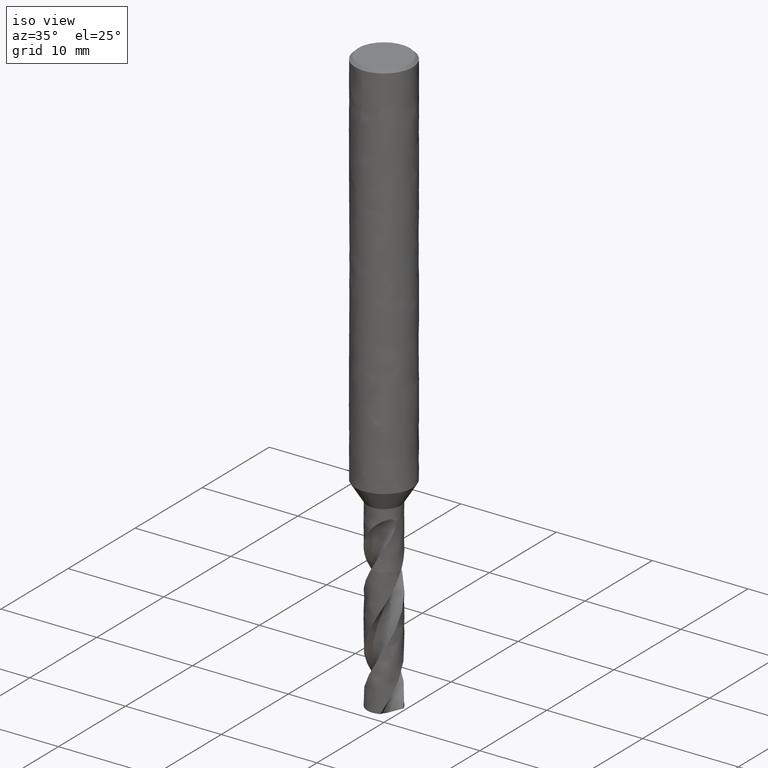
[diagram: clean part render]
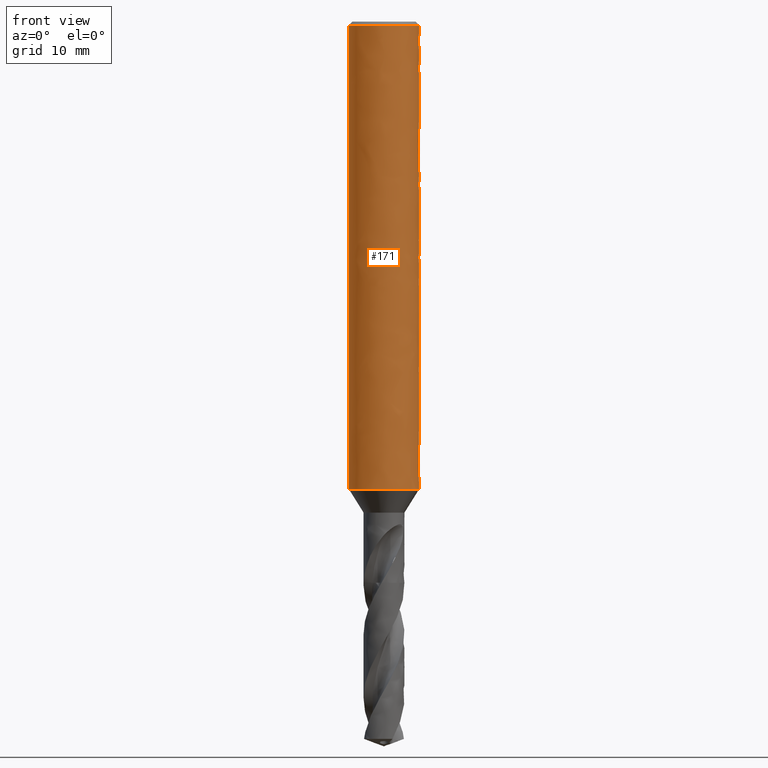
[diagram: tour spotlight — one face highlighted and labeled with its STEP entity id]
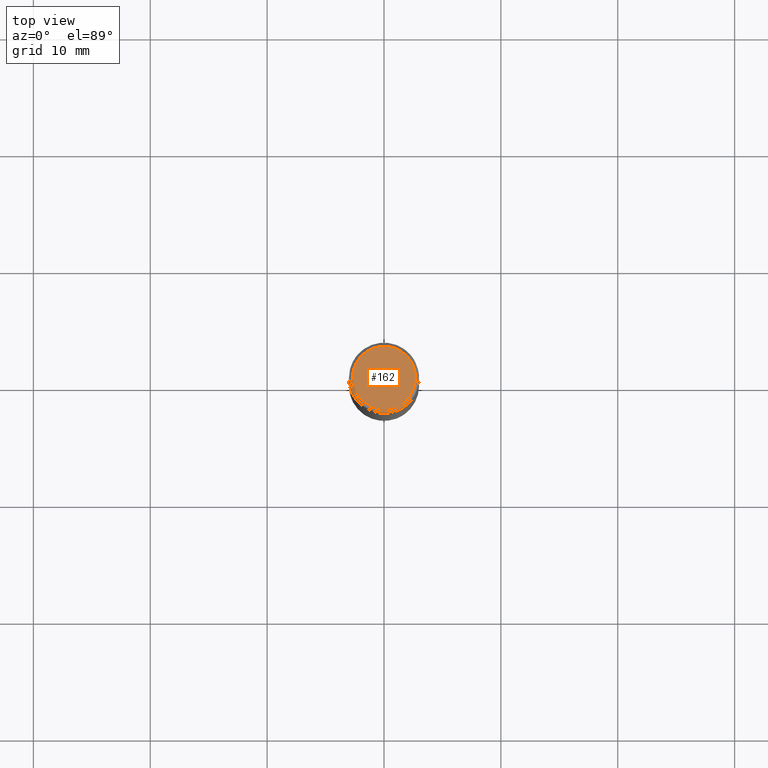
[diagram: tour spotlight — one face highlighted and labeled with its STEP entity id]
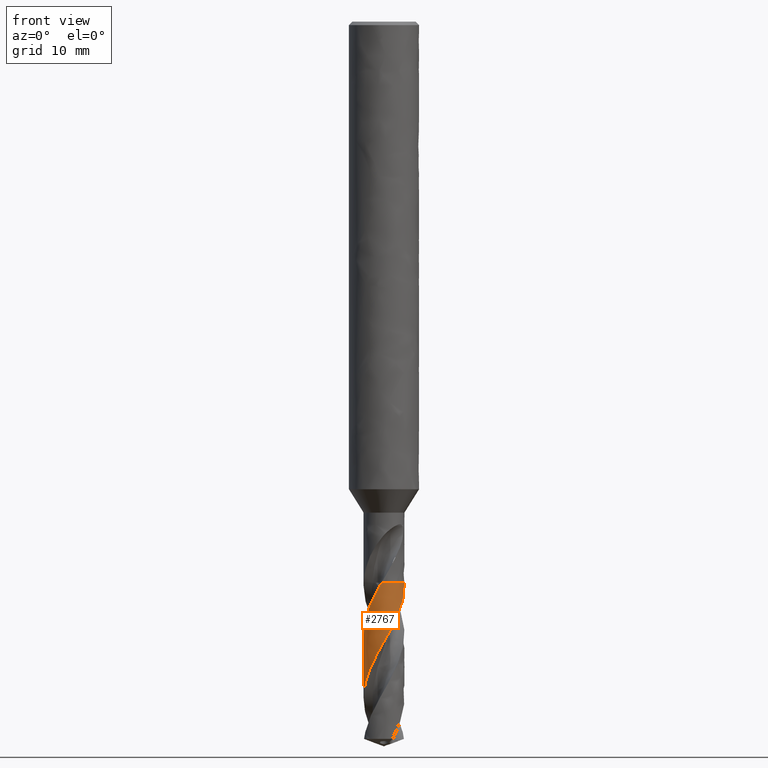
[diagram: tour spotlight — one face highlighted and labeled with its STEP entity id]
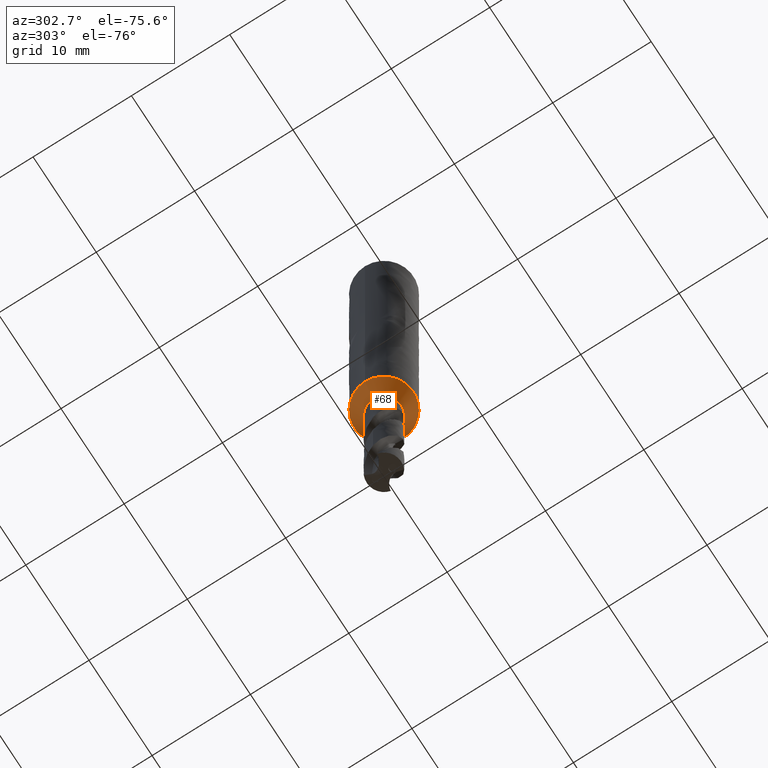
[diagram: tour spotlight — one face highlighted and labeled with its STEP entity id]
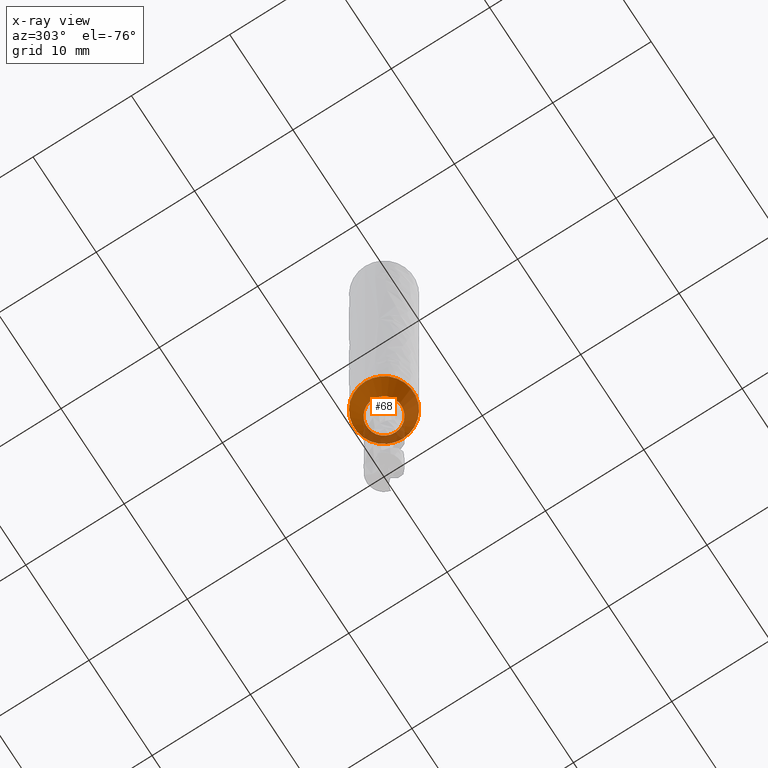
[diagram: x-ray of the same camera — body ghosted, this tour face saturated]
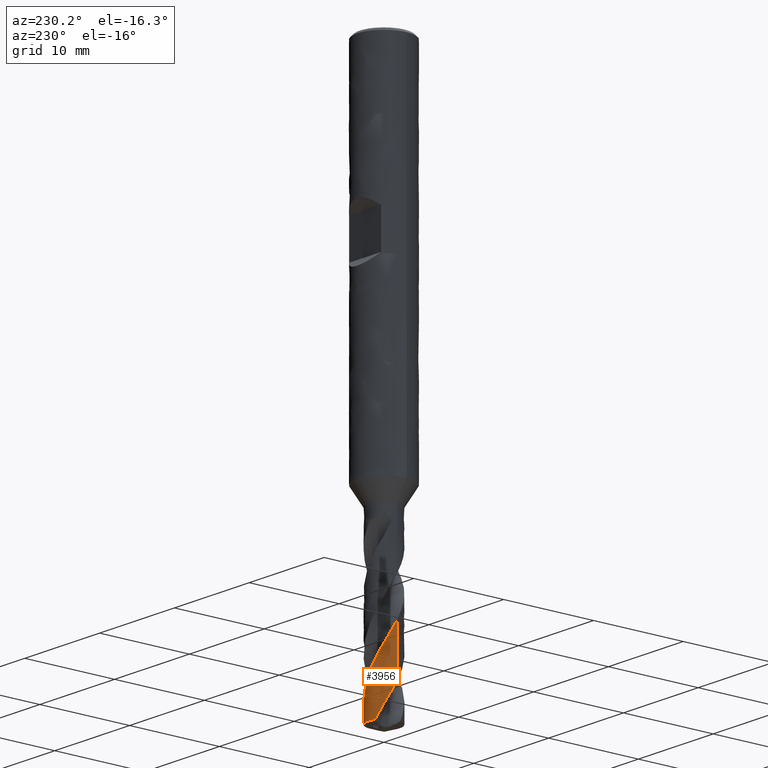
[diagram: tour spotlight — one face highlighted and labeled with its STEP entity id]
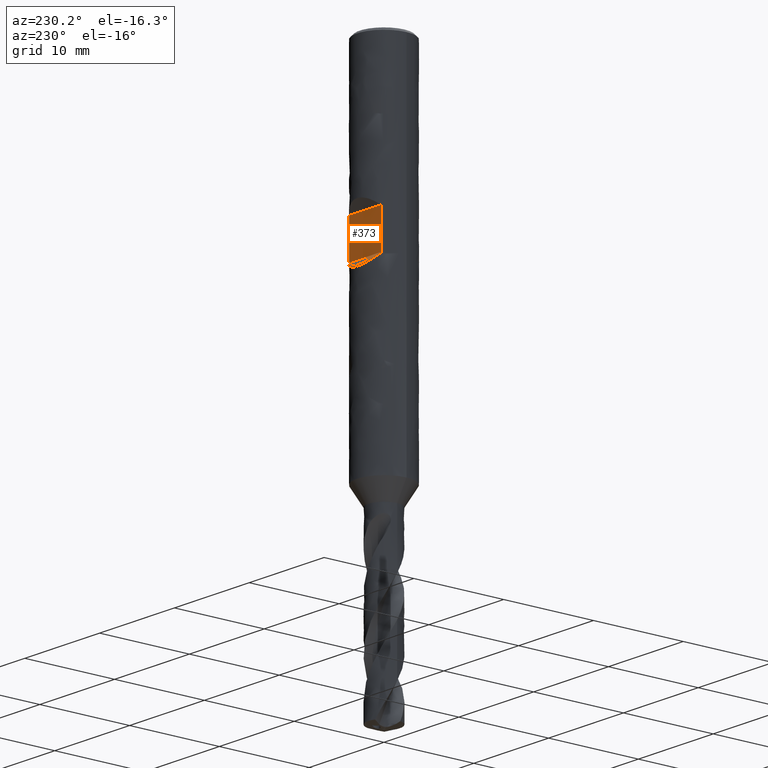
[diagram: tour spotlight — one face highlighted and labeled with its STEP entity id]
A machine part: a face-by-face anatomy tour. The part has 33 B-rep faces; the first image is the clean iso view, then the 6 largest visible faces are spotlighted one at a time (largest first), each with its STEP entity span.

Face 1 — front view, entity #171. In plain terms, the highlighted face is a freeform B-spline surface patch.
Definition (entity closure, byte-faithful):
#73 = VERTEX_POINT('', #74);
#74 = CARTESIAN_POINT('', (-3., 2.63299061816681E-15, -40.));
#82 = EDGE_CURVE('', #73, #73, #83, .T.);
#83 = CIRCLE('', #84, 3.);
#84 = AXIS2_PLACEMENT_3D('', #85, #86, #87);
#85 = CARTESIAN_POINT('', (1.49975978266186E-31, 2.44929359829471E-15, -40.));
#86 = DIRECTION('', (3.74939945665464E-33, 6.12323399573677E-17, -1.));
#87 = DIRECTION('', (-1., 6.12323399573677E-17, 0.));
#120 = VERTEX_POINT('', #121);
#121 = CARTESIAN_POINT('', (-3., 2.02066721859313E-16, -0.299999999999997));
#137 = EDGE_CURVE('', #120, #120, #138, .T.);
#138 = CIRCLE('', #139, 3.);
#139 = AXIS2_PLACEMENT_3D('', #140, #141, #142);
#140 = CARTESIAN_POINT('', (1.12481983699635E-33, 1.836970198721E-17, -0.299999999999997));
#141 = DIRECTION('', (3.74939945665464E-33, 6.12323399573677E-17, -1.));
#142 = DIRECTION('', (-1., 6.12323399573677E-17, 0.));
#171 = ADVANCED_FACE('', (#172, #183), #354, .T.);
#172 = FACE_OUTER_BOUND('', #173, .T.);
#173 = EDGE_LOOP('', (#174, #180, #181, #182));
#174 = ORIENTED_EDGE('', *, *, #175, .T.);
#175 = EDGE_CURVE('', #73, #120, #176, .T.);
#176 = LINE('', #177, #178);
#177 = CARTESIAN_POINT('', (-3., 2.63299061816681E-15, -40.));
#178 = VECTOR('', #179, 39.7);
#179 = DIRECTION('', (0., -2.4309238963075E-15, 39.7));
#180 = ORIENTED_EDGE('', *, *, #137, .T.);
#181 = ORIENTED_EDGE('', *, *, #175, .F.);
#182 = ORIENTED_EDGE('', *, *, #82, .F.);
#183 = FACE_BOUND('', #184, .T.);
#184 = EDGE_LOOP('', (#185, #265, #273, #348));
#185 = ORIENTED_EDGE('', *, *, #186, .F.);
#186 = EDGE_CURVE('', #187, #189, #191, .T.);
#187 = VERTEX_POINT('', #188);
#188 = CARTESIAN_POINT('', (-2.14242852856285, 2.1, -15.9));
#189 = VERTEX_POINT('', #190);
#190 = CARTESIAN_POINT('', (2.14242852856286, 2.1, -15.9));
#191 = B_SPLINE_CURVE_WITH_KNOTS('', 3, (#192, #193, #194, #195, #196, #197, #198, #199, #200, #201, #202, #203, #204, #205, #206, #207, #208, #209, #210, #211, #212, #213, #214, #215, #216, #217, #218, #219, #220, #221, #222, #223, #224, #225, #226, #227, #228, #229, #230, #231, #232, #233, #234, #235, #236, #237, #238, #239, #240, #241, #242, #243, #244, #245, #246, #247, #248, #249, #250, #251, #252, #253, #254, #255, #256, #257, #258, #259, #260, #261, #262, #263, #264), .UNSPECIFIED., .F., .U., (4, 3, 3, 3, 3, 3, 3, 3, 3, 3, 3, 3, 3, 3, 3, 3, 3, 3, 3, 3, 3, 3, 3, 3, 4), (0., 0.226532141220105, 0.522486989651017, 0.818712617000367, 1.01613164123478, 1.21365653787485, 1.41130126070877, 1.60907935009336, 1.80700249001341, 2.00507870652317, 2.20331049885992, 2.40169339368014, 2.59896230886553, 2.79623122405092, 2.99461411887113, 3.19284591120788, 3.39092212771765, 3.58884526763769, 3.78662335702229, 3.98426807985621, 4.18179297649628, 4.37921200073068, 4.67543762808003, 4.97139247651094, 5.19792461773105), .UNSPECIFIED.);
#192 = CARTESIAN_POINT('', (-2.14242852856285, 2.1, -15.9));
#193 = CARTESIAN_POINT('', (-2.09966946167759, 2.14362297369035, -15.8556089394693));
#194 = CARTESIAN_POINT('', (-2.05511554936736, 2.1864112283916, -15.8120672951529));
#195 = CARTESIAN_POINT('', (-2.0087677833036, 2.22819478339795, -15.7695480406737));
#196 = CARTESIAN_POINT('', (-1.94821634893922, 2.28278326528933, -15.71399839793));
#197 = CARTESIAN_POINT('', (-1.88451279376244, 2.33573606973675, -15.6601132326456));
#198 = CARTESIAN_POINT('', (-1.81770907332823, 2.38661553768948, -15.6083379099064));
#199 = CARTESIAN_POINT('', (-1.75084423195188, 2.43754155695696, -15.5565152162052));
#200 = CARTESIAN_POINT('', (-1.6807436866328, 2.48648668451198, -15.5067082925553));
#201 = CARTESIAN_POINT('', (-1.60754910566601, 2.53294016369761, -15.4594368887067));
#202 = CARTESIAN_POINT('', (-1.5587687118729, 2.56389899941747, -15.4279329486004));
#203 = CARTESIAN_POINT('', (-1.5085561938224, 2.59378846644904, -15.3975172059771));
#204 = CARTESIAN_POINT('', (-1.45698599487322, 2.6224400490275, -15.3683611437249));
#205 = CARTESIAN_POINT('', (-1.40538813971894, 2.65110699695379, -15.3391894455811));
#206 = CARTESIAN_POINT('', (-1.35237136818211, 2.67856731294512, -15.311245625015));
#207 = CARTESIAN_POINT('', (-1.29804490816719, 2.7046403488045, -15.2847135109673));
#208 = CARTESIAN_POINT('', (-1.24368549163368, 2.73072920156951, -15.2581653015195));
#209 = CARTESIAN_POINT('', (-1.18794354651529, 2.75546251726231, -15.2329964966177));
#210 = CARTESIAN_POINT('', (-1.13097137564117, 2.77865142604833, -15.2093992916021));
#211 = CARTESIAN_POINT('', (-1.07396076113039, 2.80185598222798, -15.1857861636831));
#212 = CARTESIAN_POINT('', (-1.01563414958425, 2.82354738172838, -15.1637128351876));
#213 = CARTESIAN_POINT('', (-0.956194799697468, 2.84353503671602, -15.143373249704));
#214 = CARTESIAN_POINT('', (-0.896711856966018, 2.86353735065839, -15.1230187471597));
#215 = CARTESIAN_POINT('', (-0.836016614422421, 2.88186535336629, -15.1043680361057));
#216 = CARTESIAN_POINT('', (-0.77436916802439, 2.89833614192924, -15.087607239896));
#217 = CARTESIAN_POINT('', (-0.712674042608821, 2.91481966923585, -15.0708334806465));
#218 = CARTESIAN_POINT('', (-0.64991330506456, 2.92947198918526, -15.0559231715418));
#219 = CARTESIAN_POINT('', (-0.586405693294024, 2.94212990244693, -15.0430423854271));
#220 = CARTESIAN_POINT('', (-0.522848200475703, 2.95479775766609, -15.030151482303));
#221 = CARTESIAN_POINT('', (-0.458417641638557, 2.96549204170255, -15.0192688998049));
#222 = CARTESIAN_POINT('', (-0.393487032405311, 2.97408270821927, -15.010526974047));
#223 = CARTESIAN_POINT('', (-0.32850692971699, 2.98267992298454, -15.0017783847429));
#224 = CARTESIAN_POINT('', (-0.262890170542841, 2.98918754384691, -14.9951561816426));
#225 = CARTESIAN_POINT('', (-0.197052250671389, 2.99352140638837, -14.9907460110803));
#226 = CARTESIAN_POINT('', (-0.131584030526332, 2.99783093298788, -14.9863606049525));
#227 = CARTESIAN_POINT('', (-0.0657563050617957, 3., -14.9841533463251));
#228 = CARTESIAN_POINT('', (3.13893114861083E-16, 3., -14.9841533463251));
#229 = CARTESIAN_POINT('', (0.0657563050617965, 3., -14.9841533463251));
#230 = CARTESIAN_POINT('', (0.131584030526332, 2.99783093298788, -14.9863606049525));
#231 = CARTESIAN_POINT('', (0.19705225067139, 2.99352140638837, -14.9907460110803));
#232 = CARTESIAN_POINT('', (0.262890170542842, 2.98918754384691, -14.9951561816426));
#233 = CARTESIAN_POINT('', (0.328506929716991, 2.98267992298454, -15.0017783847429));
#234 = CARTESIAN_POINT('', (0.393487032405312, 2.97408270821927, -15.010526974047));
#235 = CARTESIAN_POINT('', (0.458417641638558, 2.96549204170255, -15.0192688998049));
#236 = CARTESIAN_POINT('', (0.522848200475704, 2.95479775766609, -15.030151482303));
#237 = CARTESIAN_POINT('', (0.586405693294025, 2.94212990244693, -15.0430423854271));
#238 = CARTESIAN_POINT('', (0.649913305064561, 2.92947198918526, -15.0559231715418));
#239 = CARTESIAN_POINT('', (0.712674042608822, 2.91481966923584, -15.0708334806465));
#240 = CARTESIAN_POINT('', (0.774369168024391, 2.89833614192924, -15.087607239896));
#241 = CARTESIAN_POINT('', (0.836016614422422, 2.88186535336629, -15.1043680361057));
#242 = CARTESIAN_POINT('', (0.896711856966019, 2.86353735065839, -15.1230187471597));
#243 = CARTESIAN_POINT('', (0.956194799697467, 2.84353503671602, -15.143373249704));
#244 = CARTESIAN_POINT('', (1.01563414958425, 2.82354738172838, -15.1637128351876));
#245 = CARTESIAN_POINT('', (1.07396076113039, 2.80185598222798, -15.1857861636831));
#246 = CARTESIAN_POINT('', (1.13097137564117, 2.77865142604833, -15.2093992916021));
#247 = CARTESIAN_POINT('', (1.18794354651529, 2.75546251726231, -15.2329964966177));
#248 = CARTESIAN_POINT('', (1.24368549163368, 2.7307292015695, -15.2581653015195));
#249 = CARTESIAN_POINT('', (1.29804490816719, 2.7046403488045, -15.2847135109673));
#250 = CARTESIAN_POINT('', (1.35237136818211, 2.67856731294511, -15.311245625015));
#251 = CARTESIAN_POINT('', (1.40538813971894, 2.65110699695379, -15.3391894455811));
#252 = CARTESIAN_POINT('', (1.45698599487322, 2.6224400490275, -15.3683611437249));
#253 = CARTESIAN_POINT('', (1.5085561938224, 2.59378846644904, -15.3975172059771));
#254 = CARTESIAN_POINT('', (1.5587687118729, 2.56389899941747, -15.4279329486004));
#255 = CARTESIAN_POINT('', (1.60754910566601, 2.53294016369761, -15.4594368887067));
#256 = CARTESIAN_POINT('', (1.6807436866328, 2.48648668451198, -15.5067082925553));
#257 = CARTESIAN_POINT('', (1.75084423195188, 2.43754155695696, -15.5565152162052));
#258 = CARTESIAN_POINT('', (1.81770907332823, 2.38661553768948, -15.6083379099064));
#259 = CARTESIAN_POINT('', (1.88451279376244, 2.33573606973675, -15.6601132326456));
#260 = CARTESIAN_POINT('', (1.94821634893921, 2.28278326528933, -15.71399839793));
#261 = CARTESIAN_POINT('', (2.00876778330359, 2.22819478339796, -15.7695480406737));
#262 = CARTESIAN_POINT('', (2.05511554936735, 2.1864112283916, -15.8120672951529));
#263 = CARTESIAN_POINT('', (2.09966946167759, 2.14362297369035, -15.8556089394693));
#264 = CARTESIAN_POINT('', (2.14242852856286, 2.1, -15.9));
#265 = ORIENTED_EDGE('', *, *, #266, .T.);
#266 = EDGE_CURVE('', #187, #267, #269, .T.);
#267 = VERTEX_POINT('', #268);
#268 = CARTESIAN_POINT('', (-2.14242852856285, 2.1, -20.1));
#269 = LINE('', #270, #271);
#270 = CARTESIAN_POINT('', (-2.14242852856285, 2.1, -15.9));
#271 = VECTOR('', #272, 4.2);
#272 = DIRECTION('', (0., 4.44089209850063E-16, -4.2));
#273 = ORIENTED_EDGE('', *, *, #274, .T.);
#274 = EDGE_CURVE('', #267, #275, #277, .T.);
#275 = VERTEX_POINT('', #276);
#276 = CARTESIAN_POINT('', (2.14242852856285, 2.1, -20.1));
#277 = B_SPLINE_CURVE_WITH_KNOTS('', 3, (#278, #279, #280, #281, #282, #283, #284, #285, #286, #287, #288, #289, #290, #291, #292, #293, #294, #295, #296, #297, #298, #299, #300, #301, #302, #303, #304, #305, #306, #307, #308, #309, #310, #311, #312, #313, #314, #315, #316, #317, #318, #319, #320, #321, #322, #323, #324, #325, #326, #327, #328, #329, #330, #331, #332, #333, #334, #335, #336, #337, #338, #339, #340, #341, #342, #343, #344, #345, #346, #347), .UNSPECIFIED., .F., .U., (4, 3, 3, 3, 3, 3, 3, 3, 3, 3, 3, 3, 3, 3, 3, 3, 3, 3, 3, 3, 3, 3, 3, 4), (0., 0.295660747419766, 0.591176839852674, 0.886518626925892, 1.18164841836716, 1.47652016794506, 1.67307726230278, 1.86952243409268, 2.06584587187348, 2.26204020012183, 2.39294997035299, 2.5987955185311, 2.79606443371648, 2.9944473285367, 3.19267912087345, 3.39075533738322, 3.58867847730326, 3.78645656668786, 3.98410128952178, 4.18162618616185, 4.37904521039626, 4.67527083774561, 4.97122568617652, 5.19775782739662), .UNSPECIFIED.);
#278 = CARTESIAN_POINT('', (-2.14242852856285, 2.1, -20.1));
#279 = CARTESIAN_POINT('', (-2.08662109388194, 2.15693497150777, -20.157937447925));
#280 = CARTESIAN_POINT('', (-2.02774367313634, 2.21245994000831, -20.2144400663657));
#281 = CARTESIAN_POINT('', (-1.96580397010841, 2.26618947820047, -20.269115641651));
#282 = CARTESIAN_POINT('', (-1.90389457170158, 2.31989272867704, -20.3237644663626));
#283 = CARTESIAN_POINT('', (-1.8388216153995, 2.37189080900499, -20.3766780973248));
#284 = CARTESIAN_POINT('', (-1.77065397516674, 2.42173171516323, -20.4273965719039));
#285 = CARTESIAN_POINT('', (-1.70252654250763, 2.47154322347377, -20.4780851310158));
#286 = CARTESIAN_POINT('', (-1.63117078258686, 2.51929762113425, -20.5266803591222));
#287 = CARTESIAN_POINT('', (-1.55675381487312, 2.56447217958794, -20.572650323779));
#288 = CARTESIAN_POINT('', (-1.48239026348173, 2.60961431185107, -20.6185872913044));
#289 = CARTESIAN_POINT('', (-1.40478985624159, 2.6522855246488, -20.6620098329141));
#290 = CARTESIAN_POINT('', (-1.32426732289553, 2.69189822569709, -20.7023200103564));
#291 = CARTESIAN_POINT('', (-1.24381519309784, 2.73147629203384, -20.7425949432603));
#292 = CARTESIAN_POINT('', (-1.16021288035591, 2.76811040114363, -20.7798740835253));
#293 = CARTESIAN_POINT('', (-1.07398043712975, 2.80117225829877, -20.8135180737918));
#294 = CARTESIAN_POINT('', (-1.01649918128152, 2.82321079737816, -20.8359446540893));
#295 = CARTESIAN_POINT('', (-0.957748596561566, 2.84370285567261, -20.856797524107));
#296 = CARTESIAN_POINT('', (-0.897945836518626, 2.86246279882885, -20.8758877809545));
#297 = CARTESIAN_POINT('', (-0.838177129067321, 2.88121205979111, -20.8949671675225));
#298 = CARTESIAN_POINT('', (-0.777257254947384, 2.89826163823775, -20.9123169445968));
#299 = CARTESIAN_POINT('', (-0.715458762567485, 2.91343761887321, -20.9277601346871));
#300 = CARTESIAN_POINT('', (-0.653698565749471, 2.92860419519017, -20.9431937548733));
#301 = CARTESIAN_POINT('', (-0.590947680355497, 2.94192632660259, -20.9567504542887));
#302 = CARTESIAN_POINT('', (-0.527533495262695, 2.9532538684265, -20.9682774445929));
#303 = CARTESIAN_POINT('', (-0.464161013676516, 2.96457396084119, -20.9797968543232));
#304 = CARTESIAN_POINT('', (-0.400001379736569, 2.97392352783086, -20.989311042813));
#305 = CARTESIAN_POINT('', (-0.335429955765129, 2.98118881400953, -20.9967042517405));
#306 = CARTESIAN_POINT('', (-0.29234496777863, 2.9860365430586, -21.0016373366599));
#307 = CARTESIAN_POINT('', (-0.249027925527352, 2.98996321515988, -21.0056331472199));
#308 = CARTESIAN_POINT('', (-0.205599414331938, 2.99294652154468, -21.0086689818526));
#309 = CARTESIAN_POINT('', (-0.13731141964832, 2.99763754145158, -21.0134425983904));
#310 = CARTESIAN_POINT('', (-0.0686151827260354, 3., -21.0158466536749));
#311 = CARTESIAN_POINT('', (-7.52061461371339E-16, 3., -21.0158466536749));
#312 = CARTESIAN_POINT('', (0.0657563050617954, 3., -21.0158466536749));
#313 = CARTESIAN_POINT('', (0.131584030526331, 2.99783093298788, -21.0136393950475));
#314 = CARTESIAN_POINT('', (0.197052250671389, 2.99352140638837, -21.0092539889197));
#315 = CARTESIAN_POINT('', (0.262890170542842, 2.98918754384691, -21.0048438183574));
#316 = CARTESIAN_POINT('', (0.32850692971699, 2.98267992298454, -20.9982216152571));
#317 = CARTESIAN_POINT('', (0.393487032405311, 2.97408270821927, -20.989473025953));
#318 = CARTESIAN_POINT('', (0.458417641638557, 2.96549204170255, -20.9807311001951));
#319 = CARTESIAN_POINT('', (0.522848200475704, 2.95479775766609, -20.969848517697));
#320 = CARTESIAN_POINT('', (0.586405693294024, 2.94212990244693, -20.9569576145729));
#321 = CARTESIAN_POINT('', (0.649913305064561, 2.92947198918526, -20.9440768284582));
#322 = CARTESIAN_POINT('', (0.712674042608821, 2.91481966923585, -20.9291665193535));
#323 = CARTESIAN_POINT('', (0.77436916802439, 2.89833614192924, -20.912392760104));
#324 = CARTESIAN_POINT('', (0.836016614422421, 2.88186535336629, -20.8956319638943));
#325 = CARTESIAN_POINT('', (0.896711856966018, 2.86353735065839, -20.8769812528403));
#326 = CARTESIAN_POINT('', (0.956194799697467, 2.84353503671602, -20.856626750296));
#327 = CARTESIAN_POINT('', (1.01563414958425, 2.82354738172838, -20.8362871648124));
#328 = CARTESIAN_POINT('', (1.07396076113039, 2.80185598222798, -20.8142138363169));
#329 = CARTESIAN_POINT('', (1.13097137564117, 2.77865142604833, -20.7906007083979));
#330 = CARTESIAN_POINT('', (1.18794354651529, 2.75546251726231, -20.7670035033823));
#331 = CARTESIAN_POINT('', (1.24368549163368, 2.73072920156951, -20.7418346984805));
#332 = CARTESIAN_POINT('', (1.29804490816719, 2.7046403488045, -20.7152864890327));
#333 = CARTESIAN_POINT('', (1.35237136818211, 2.67856731294511, -20.688754374985));
#334 = CARTESIAN_POINT('', (1.40538813971894, 2.65110699695379, -20.6608105544189));
#335 = CARTESIAN_POINT('', (1.45698599487322, 2.6224400490275, -20.6316388562751));
#336 = CARTESIAN_POINT('', (1.5085561938224, 2.59378846644904, -20.6024827940229));
#337 = CARTESIAN_POINT('', (1.5587687118729, 2.56389899941747, -20.5720670513996));
#338 = CARTESIAN_POINT('', (1.60754910566601, 2.53294016369761, -20.5405631112933));
#339 = CARTESIAN_POINT('', (1.6807436866328, 2.48648668451198, -20.4932917074447));
#340 = CARTESIAN_POINT('', (1.75084423195188, 2.43754155695696, -20.4434847837948));
#341 = CARTESIAN_POINT('', (1.81770907332823, 2.38661553768947, -20.3916620900936));
#342 = CARTESIAN_POINT('', (1.88451279376245, 2.33573606973675, -20.3398867673544));
#343 = CARTESIAN_POINT('', (1.94821634893922, 2.28278326528933, -20.28600160207));
#344 = CARTESIAN_POINT('', (2.0087677833036, 2.22819478339795, -20.2304519593262));
#345 = CARTESIAN_POINT('', (2.05511554936736, 2.1864112283916, -20.1879327048471));
#346 = CARTESIAN_POINT('', (2.09966946167759, 2.14362297369034, -20.1443910605307));
#347 = CARTESIAN_POINT('', (2.14242852856285, 2.1, -20.1));
#348 = ORIENTED_EDGE('', *, *, #349, .F.);
#349 = EDGE_CURVE('', #189, #275, #350, .T.);
#350 = LINE('', #351, #352);
#351 = CARTESIAN_POINT('', (2.14242852856286, 2.1, -15.9));
#352 = VECTOR('', #353, 4.2);
#353 = DIRECTION('', (-1.33226762955019E-15, 4.44089209850063E-16, -4.2));
#354 = (
   BOUNDED_SURFACE ()
   B_SPLINE_SURFACE (1, 2, ((#355, #356, #357, #358, #359, #360, #361, #362, #363), (#364, #365, #366, #367, #368, #369, #370, #371, #372)), .UNSPECIFIED., .F., .T., .U.)
   B_SPLINE_SURFACE_WITH_KNOTS ((2, 2), (3, 2, 2, 2, 3), (0., 1.), (0., 4.71238898038469, 9.42477796076938, 14.1371669411541, 18.8495559215388), .UNSPECIFIED.)
   GEOMETRIC_REPRESENTATION_ITEM ()
   RATIONAL_B_SPLINE_SURFACE (((1., 0.707106781186548, 1., 0.707106781186548, 1., 0.707106781186548, 1., 0.707106781186548, 1.), (1., 0.707106781186548, 1., 0.707106781186548, 1., 0.707106781186548, 1., 0.707106781186548, 1.)))
   REPRESENTATION_ITEM ('')
   SURFACE ()
);
#355 = CARTESIAN_POINT('', (-3., 2.63299061816681E-15, -40.));
#356 = CARTESIAN_POINT('', (-3., 3., -40.));
#357 = CARTESIAN_POINT('', (1.4791141972894E-31, 3., -40.));
#358 = CARTESIAN_POINT('', (3., 3., -40.));
#359 = CARTESIAN_POINT('', (3., 2.63299061816681E-15, -40.));
#360 = CARTESIAN_POINT('', (3., -3., -40.));
#361 = CARTESIAN_POINT('', (3.67394039744206E-16, -3., -40.));
#362 = CARTESIAN_POINT('', (-3., -3., -40.));
#363 = CARTESIAN_POINT('', (-3., 2.63299061816681E-15, -40.));
#364 = CARTESIAN_POINT('', (-3., 2.02066721859313E-16, -0.299999999999997));
#365 = CARTESIAN_POINT('', (-3., 3., -0.299999999999997));
#366 = CARTESIAN_POINT('', (0., 3., -0.299999999999997));
#367 = CARTESIAN_POINT('', (3., 3., -0.299999999999997));
#368 = CARTESIAN_POINT('', (3., 2.02066721859313E-16, -0.299999999999997));
#369 = CARTESIAN_POINT('', (3., -3., -0.299999999999997));
#370 = CARTESIAN_POINT('', (3.67394039744206E-16, -3., -0.299999999999997));
#371 = CARTESIAN_POINT('', (-3., -3., -0.299999999999997));
#372 = CARTESIAN_POINT('', (-3., 2.02066721859313E-16, -0.299999999999997));

Face 2 — top view, entity #162. In plain terms, the highlighted planar face has unit normal (0, -0, 1).
Definition (entity closure, byte-faithful):
#122 = VERTEX_POINT('', #123);
#123 = CARTESIAN_POINT('', (-2.7, 1.65327317884893E-16, 0.));
#129 = EDGE_CURVE('', #122, #122, #130, .T.);
#130 = CIRCLE('', #131, 2.7);
#131 = AXIS2_PLACEMENT_3D('', #132, #133, #134);
#132 = CARTESIAN_POINT('', (-2.18952885050753E-47, 1.25267077750159E-64, -7.44237865339621E-80));
#133 = DIRECTION('', (3.74939945665464E-33, 6.12323399573677E-17, -1.));
#134 = DIRECTION('', (-1., 6.12323399573677E-17, 0.));
#162 = ADVANCED_FACE('', (#163), #166, .T.);
#163 = FACE_OUTER_BOUND('', #164, .T.);
#164 = EDGE_LOOP('', (#165));
#165 = ORIENTED_EDGE('', *, *, #129, .F.);
#166 = PLANE('', #167);
#167 = AXIS2_PLACEMENT_3D('', #168, #169, #170);
#168 = CARTESIAN_POINT('', (4.20021428024809, -4.20021428024809, -1.13106398578357E-14));
#169 = DIRECTION('', (0., -2.69287210203181E-15, 1.));
#170 = DIRECTION('', (0., 1., 2.69287210203181E-15));

Face 3 — front view, entity #2767. In plain terms, the highlighted face is a freeform B-spline surface patch.
Definition (entity closure, byte-faithful):
#1718 = VERTEX_POINT('', #1719);
#1719 = CARTESIAN_POINT('', (-0.209315928972216, -1.73743685676138, -48.));
#1774 = EDGE_CURVE('', #1775, #1718, #1777, .T.);
#1775 = VERTEX_POINT('', #1776);
#1776 = CARTESIAN_POINT('', (1.74438217482353, 0.140110057304683, -48.));
#1777 = CIRCLE('', #1778, 1.75);
#1778 = AXIS2_PLACEMENT_3D('', #1779, #1780, #1781);
#1779 = CARTESIAN_POINT('', (1.79971173919423E-31, 2.93915231795365E-15, -48.));
#1780 = DIRECTION('', (3.74939945665464E-33, 6.12323399573677E-17, -1.));
#1781 = DIRECTION('', (-1., 6.12323399573677E-17, 0.));
#2517 = EDGE_CURVE('', #1775, #2518, #2520, .T.);
#2518 = VERTEX_POINT('', #2519);
#2519 = CARTESIAN_POINT('', (-1.75, 3.64930698702784E-15, -57.8477058784399));
#2520 = B_SPLINE_CURVE_WITH_KNOTS('', 3, (#2521, #2522, #2523, #2524, #2525, #2526, #2527, #2528, #2529, #2530, #2531, #2532, #2533, #2534, #2535, #2536, #2537, #2538, #2539, #2540, #2541, #2542, #2543, #2544, #2545, #2546, #2547, #2548, #2549, #2550, #2551, #2552, #2553, #2554, #2555, #2556, #2557, #2558, #2559, #2560, #2561, #2562, #2563, #2564, #2565, #2566, #2567, #2568, #2569, #2570, #2571, #2572, #2573, #2574, #2575, #2576, #2577, #2578, #2579, #2580, #2581, #2582, #2583, #2584, #2585, #2586, #2587, #2588, #2589, #2590, #2591, #2592, #2593, #2594, #2595, #2596, #2597, #2598, #2599, #2600, #2601, #2602, #2603, #2604, #2605, #2606, #2607, #2608, #2609, #2610, #2611), .UNSPECIFIED., .F., .U., (4, 3, 3, 3, 3, 3, 3, 3, 3, 3, 3, 3, 3, 3, 3, 3, 3, 3, 3, 3, 3, 3, 3, 3, 3, 3, 3, 3, 3, 3, 4), (4.70039925211486, 4.92610576799358, 4.98446693995225, 5.28064855659942, 5.57675495648207, 6.0210948906952, 6.46519202272964, 6.90905561012101, 7.35269339663982, 7.79611094669977, 8.23931202254095, 8.68229864996652, 9.12507100177936, 9.56762743614766, 10.0099646510711, 10.4520775384883, 10.4909906125792, 10.5299115405552, 10.9745751663411, 11.4189809979274, 11.8631424771194, 12.3070702947424, 12.7507727551345, 13.1942559954644, 13.637524095223, 14.0805794330168, 14.5234227455141, 14.9660531085796, 15.4084678578694, 15.8506624172696, 16.046137252868), .UNSPECIFIED.);
#2521 = CARTESIAN_POINT('', (1.74438217482353, 0.140110057304683, -48.));
#2522 = CARTESIAN_POINT('', (1.74738365711183, 0.102741346574917, -48.0652299917151));
#2523 = CARTESIAN_POINT('', (1.74918433699748, 0.0652636421488522, -48.1304741539837));
#2524 = CARTESIAN_POINT('', (1.7497794520792, 0.0277825319488043, -48.1957059979933));
#2525 = CARTESIAN_POINT('', (1.7499333316138, 0.018091001737234, -48.2125730647264));
#2526 = CARTESIAN_POINT('', (1.75000668630908, 0.00839846503599853, -48.229440479955));
#2527 = CARTESIAN_POINT('', (1.74999952187907, -0.00129360853573714, -48.2463079348751));
#2528 = CARTESIAN_POINT('', (1.74996316256014, -0.0504806608652014, -48.3319098838989));
#2529 = CARTESIAN_POINT('', (1.74785142132008, -0.0996683298684826, -48.4175356641757));
#2530 = CARTESIAN_POINT('', (1.74367370502854, -0.148667449000485, -48.5031434566154));
#2531 = CARTESIAN_POINT('', (1.73949704968841, -0.197654124567464, -48.5887295085391));
#2532 = CARTESIAN_POINT('', (1.73325338578361, -0.246473751504741, -48.6743353378787));
#2533 = CARTESIAN_POINT('', (1.7249685561623, -0.294929619149195, -48.759924482084));
#2534 = CARTESIAN_POINT('', (1.71253626611264, -0.367642931154303, -48.8883603237971));
#2535 = CARTESIAN_POINT('', (1.69549270996606, -0.439594913436148, -49.0168652145631));
#2536 = CARTESIAN_POINT('', (1.67399352903945, -0.510142788574003, -49.1453110613165));
#2537 = CARTESIAN_POINT('', (1.65250609598325, -0.580652113996952, -49.2736867209698));
#2538 = CARTESIAN_POINT('', (1.62654675224313, -0.649828105329592, -49.4021303663657));
#2539 = CARTESIAN_POINT('', (1.59635078790116, -0.717052412287743, -49.5305152604686));
#2540 = CARTESIAN_POINT('', (1.56617070320626, -0.784241366896955, -49.6588326387014));
#2541 = CARTESIAN_POINT('', (1.53172906142661, -0.84954627014924, -49.7872181772072));
#2542 = CARTESIAN_POINT('', (1.49333611766141, -0.912385466613767, -49.9155449473954));
#2543 = CARTESIAN_POINT('', (1.45496270503245, -0.975192695722116, -50.0438064355973));
#2544 = CARTESIAN_POINT('', (1.41260472933821, -1.03559776613118, -50.1721358559401));
#2545 = CARTESIAN_POINT('', (1.36664252897674, -1.09306367517727, -50.3004067474793));
#2546 = CARTESIAN_POINT('', (1.32070314577053, -1.15050105624694, -50.4286139611087));
#2547 = CARTESIAN_POINT('', (1.27111837192065, -1.20505815474811, -50.5568888737914));
#2548 = CARTESIAN_POINT('', (1.21833229111349, -1.25625094166339, -50.6851054777903));
#2549 = CARTESIAN_POINT('', (1.1655719802056, -1.30741873651746, -50.8132594870876));
#2550 = CARTESIAN_POINT('', (1.10956204207559, -1.35527542519271, -50.941481000787));
#2551 = CARTESIAN_POINT('', (1.0508028338207, -1.39939751480213, -51.0696443355987));
#2552 = CARTESIAN_POINT('', (0.992072056947872, -1.44349825538347, -51.1977456569687));
#2553 = CARTESIAN_POINT('', (0.930537621070243, -1.48391089297866, -51.325914403821));
#2554 = CARTESIAN_POINT('', (0.866747671469776, -1.52027907767019, -51.4540250024492));
#2555 = CARTESIAN_POINT('', (0.8029885774972, -1.55662967082605, -51.5820736331187));
#2556 = CARTESIAN_POINT('', (0.736914639147036, -1.58897483187658, -51.7101896427094));
#2557 = CARTESIAN_POINT('', (0.669112897702819, -1.61703059035002, -51.8382475896589));
#2558 = CARTESIAN_POINT('', (0.601344219702353, -1.64507266746408, -51.9662430892931));
#2559 = CARTESIAN_POINT('', (0.531784206960082, -1.66885652955408, -52.0943058025874));
#2560 = CARTESIAN_POINT('', (0.461049672452517, -1.68817451690621, -52.2223106490819));
#2561 = CARTESIAN_POINT('', (0.390350176155179, -1.70748293513194, -52.3502520886317));
#2562 = CARTESIAN_POINT('', (0.318409147718695, -1.72234852950077, -52.4782604971801));
#2563 = CARTESIAN_POINT('', (0.245863506634426, -1.73264281838636, -52.6062112819419));
#2564 = CARTESIAN_POINT('', (0.173354656446813, -1.74293188661206, -52.7340971775659));
#2565 = CARTESIAN_POINT('', (0.100171709182645, -1.74866424769899, -52.8620498160923));
#2566 = CARTESIAN_POINT('', (0.0269613956626841, -1.74979229714384, -52.989945000047));
#2567 = CARTESIAN_POINT('', (0.0205177057470483, -1.74989158371267, -53.001201841706));
#2568 = CARTESIAN_POINT('', (0.0140735034282682, -1.74995527541761, -53.0124587602851));
#2569 = CARTESIAN_POINT('', (0.00762922911813504, -1.74998336988185, -53.0237156702077));
#2570 = CARTESIAN_POINT('', (0.00118365415028397, -1.75001147001645, -53.0349748521297));
#2571 = CARTESIAN_POINT('', (-0.00526204074677943, -1.75000395873774, -53.0462341105837));
#2572 = CARTESIAN_POINT('', (-0.0117074120493798, -1.74996083856271, -53.0574933615915));
#2573 = CARTESIAN_POINT('', (-0.085344458286148, -1.74946819939994, -53.1861279969182));
#2574 = CARTESIAN_POINT('', (-0.158977698349323, -1.74431830083688, -53.3148306443889));
#2575 = CARTESIAN_POINT('', (-0.231950447552307, -1.73456017188228, -53.4434746627905));
#2576 = CARTESIAN_POINT('', (-0.304880890728028, -1.72480770021308, -53.5720440996886));
#2577 = CARTESIAN_POINT('', (-0.377222076765915, -1.71044293732095, -53.7006813741434));
#2578 = CARTESIAN_POINT('', (-0.448330188626711, -1.69159689109608, -53.829260234455));
#2579 = CARTESIAN_POINT('', (-0.519399202356601, -1.67276120719364, -53.9577683968817));
#2580 = CARTESIAN_POINT('', (-0.589305309224004, -1.64943093747495, -54.0863441286858));
#2581 = CARTESIAN_POINT('', (-0.657427376681741, -1.62181664943663, -54.214861717102));
#2582 = CARTESIAN_POINT('', (-0.725513606927288, -1.59421688854255, -54.3433116958249));
#2583 = CARTESIAN_POINT('', (-0.791883816099663, -1.5623108197021, -54.4718289968695));
#2584 = CARTESIAN_POINT('', (-0.855949395266754, -1.52638482459129, -54.6002883407323));
#2585 = CARTESIAN_POINT('', (-0.919982451935962, -1.49047706709129, -54.728682472998));
#2586 = CARTESIAN_POINT('', (-0.981775296897328, -1.45051869521424, -54.8571438306454));
#2587 = CARTESIAN_POINT('', (-1.04078143844567, -1.40686673049972, -54.9855472333708));
#2588 = CARTESIAN_POINT('', (-1.0997584268313, -1.36323633291018, -55.1138871958307));
#2589 = CARTESIAN_POINT('', (-1.15600812500339, -1.31587412728702, -55.2422943931936));
#2590 = CARTESIAN_POINT('', (-1.20903460873352, -1.26520168940947, -55.3706436774917));
#2591 = CARTESIAN_POINT('', (-1.26203536849717, -1.21455383351438, -55.498930697569));
#2592 = CARTESIAN_POINT('', (-1.31186672194682, -1.16055055221659, -55.627284814731));
#2593 = CARTESIAN_POINT('', (-1.35809043958433, -1.10367130881873, -55.7555812096954));
#2594 = CARTESIAN_POINT('', (-1.40429197053846, -1.04681936659499, -55.8838160243362));
#2595 = CARTESIAN_POINT('', (-1.44693360297431, -0.987039748775498, -56.0121176761888));
#2596 = CARTESIAN_POINT('', (-1.48564120207251, -0.924862270127044, -56.1403618784127));
#2597 = CARTESIAN_POINT('', (-1.5243302775474, -0.862714546674454, -56.2685447090365));
#2598 = CARTESIAN_POINT('', (-1.55912633042447, -0.798111443646585, -56.3967941149921));
#2599 = CARTESIAN_POINT('', (-1.58972499955575, -0.731624511472564, -56.5249862811164));
#2600 = CARTESIAN_POINT('', (-1.62030895474867, -0.665169550774747, -56.6531168036568));
#2601 = CARTESIAN_POINT('', (-1.64672900602921, -0.596768680191038, -56.7813137933677));
#2602 = CARTESIAN_POINT('', (-1.66875528164374, -0.527025435805677, -56.9094535372733));
#2603 = CARTESIAN_POINT('', (-1.69077082783516, -0.457316164698022, -57.0375308618416));
#2604 = CARTESIAN_POINT('', (-1.70841788439933, -0.386199464886653, -57.1656746882931));
#2605 = CARTESIAN_POINT('', (-1.72154433229932, -0.314300989384909, -57.2937612738791));
#2606 = CARTESIAN_POINT('', (-1.73466424716415, -0.24243829776563, -57.4217841107515));
#2607 = CARTESIAN_POINT('', (-1.74328048931785, -0.169726620117845, -57.5498733484122));
#2608 = CARTESIAN_POINT('', (-1.74732050071332, -0.0968042756693839, -57.6779055137526));
#2609 = CARTESIAN_POINT('', (-1.74910641269835, -0.0645685029998796, -57.7345029230585));
#2610 = CARTESIAN_POINT('', (-1.75, -0.0322819756651209, -57.7911066266028));
#2611 = CARTESIAN_POINT('', (-1.75, 3.44562552700369E-15, -57.8477058784399));
#2767 = ADVANCED_FACE('', (#2768), #2829, .T.);
#2768 = FACE_OUTER_BOUND('', #2769, .T.);
#2769 = EDGE_LOOP('', (#2770, #2771, #2789, #2822, #2828));
#2770 = ORIENTED_EDGE('', *, *, #1774, .T.);
#2771 = ORIENTED_EDGE('', *, *, #2772, .T.);
#2772 = EDGE_CURVE('', #1718, #2773, #2775, .T.);
#2773 = VERTEX_POINT('', #2774);
#2774 = CARTESIAN_POINT('', (-0.812285113587229, -1.55006222270094, -49.1011981970313));
#2775 = B_SPLINE_CURVE_WITH_KNOTS('', 3, (#2776, #2777, #2778, #2779, #2780, #2781, #2782, #2783, #2784, #2785, #2786, #2787, #2788), .UNSPECIFIED., .F., .U., (4, 3, 3, 3, 4), (1.81740518934498, 2.10734334509191, 2.40334929903333, 2.84747218702439, 3.08838515466524), .UNSPECIFIED.);
#2776 = CARTESIAN_POINT('', (-0.209315928972216, -1.73743685676138, -48.));
#2777 = CARTESIAN_POINT('', (-0.25726248407179, -1.73166045023538, -48.083716123998));
#2778 = CARTESIAN_POINT('', (-0.304984864555676, -1.72389545232375, -48.1674467474083));
#2779 = CARTESIAN_POINT('', (-0.352279973630268, -1.71417584284074, -48.2511674808021));
#2780 = CARTESIAN_POINT('', (-0.400564870257008, -1.70425282229332, -48.3366403137553));
#2781 = CARTESIAN_POINT('', (-0.448430600627395, -1.69228800745389, -48.4221382165554));
#2782 = CARTESIAN_POINT('', (-0.495694141142561, -1.67832872776365, -48.50761803289));
#2783 = CARTESIAN_POINT('', (-0.56660764754599, -1.65738443415146, -48.6358706656156));
#2784 = CARTESIAN_POINT('', (-0.636220878240862, -1.63192758756203, -48.7641906230167));
#2785 = CARTESIAN_POINT('', (-0.703900569210545, -1.60219349289187, -48.8924539056458));
#2786 = CARTESIAN_POINT('', (-0.740613190067072, -1.58606433319127, -48.962029892142));
#2787 = CARTESIAN_POINT('', (-0.776773159889846, -1.56867168941804, -49.0316182206529));
#2788 = CARTESIAN_POINT('', (-0.812285113587229, -1.55006222270094, -49.1011981970313));
#2789 = ORIENTED_EDGE('', *, *, #2790, .T.);
#2790 = EDGE_CURVE('', #2773, #2791, #2793, .T.);
#2791 = VERTEX_POINT('', #2792);
#2792 = CARTESIAN_POINT('', (-1.75, 3.31654785698533E-15, -52.4133368787546));
#2793 = B_SPLINE_CURVE_WITH_KNOTS('', 3, (#2794, #2795, #2796, #2797, #2798, #2799, #2800, #2801, #2802, #2803, #2804, #2805, #2806, #2807, #2808, #2809, #2810, #2811, #2812, #2813, #2814, #2815, #2816, #2817, #2818, #2819, #2820, #2821), .UNSPECIFIED., .F., .U., (4, 3, 3, 3, 3, 3, 3, 3, 3, 4), (0., 0.443756836121889, 0.887288175163956, 1.33059910584043, 1.77369262418711, 2.21657009921409, 2.65923121537404, 3.10167392732667, 3.54389418250799, 3.81989510730565), .UNSPECIFIED.);
#2794 = CARTESIAN_POINT('', (-0.812285113587229, -1.55006222270094, -49.1011981970313));
#2795 = CARTESIAN_POINT('', (-0.877697417339805, -1.51578395967026, -49.2293631126749));
#2796 = CARTESIAN_POINT('', (-0.940955417293332, -1.47734642144534, -49.357600003051));
#2797 = CARTESIAN_POINT('', (-1.00149289007346, -1.43509999342637, -49.4857813905828));
#2798 = CARTESIAN_POINT('', (-1.06199960045802, -1.39287503312434, -49.6138976421523));
#2799 = CARTESIAN_POINT('', (-1.11984806067807, -1.3468036388528, -49.7420862240522));
#2800 = CARTESIAN_POINT('', (-1.17452341785513, -1.29730287169569, -49.8702192118372));
#2801 = CARTESIAN_POINT('', (-1.22917160467229, -1.24782670343887, -49.9982885252435));
#2802 = CARTESIAN_POINT('', (-1.28070313459823, -1.19487635516368, -50.1264299262811));
#2803 = CARTESIAN_POINT('', (-1.32866096953211, -1.13892933408618, -50.2545159968944));
#2804 = CARTESIAN_POINT('', (-1.37659528457531, -1.0830097510242, -50.3825392504438));
#2805 = CARTESIAN_POINT('', (-1.42100627728877, -1.02404177960803, -50.5106342640033));
#2806 = CARTESIAN_POINT('', (-1.46150149400688, -0.962555651905718, -50.6386742784558));
#2807 = CARTESIAN_POINT('', (-1.50197696608715, -0.901099503579307, -50.766651863221));
#2808 = CARTESIAN_POINT('', (-1.53858026815491, -0.837067266219657, -50.8947008436816));
#2809 = CARTESIAN_POINT('', (-1.57098942811824, -0.77103321377274, -51.0226951188563));
#2810 = CARTESIAN_POINT('', (-1.60338275523948, -0.705031420931646, -51.1506268650068));
#2811 = CARTESIAN_POINT('', (-1.63161792041879, -0.636964910030143, -51.2786298179934));
#2812 = CARTESIAN_POINT('', (-1.65544846416424, -0.567441963989559, -51.4065780932142));
#2813 = CARTESIAN_POINT('', (-1.67926725017713, -0.497953319818661, -51.5344632401397));
#2814 = CARTESIAN_POINT('', (-1.69870897521589, -0.42694214764618, -51.662419608365));
#2815 = CARTESIAN_POINT('', (-1.71360621754278, -0.355040464171306, -51.7903212781138));
#2816 = CARTESIAN_POINT('', (-1.72849596965152, -0.283174932306403, -51.918158639893));
#2817 = CARTESIAN_POINT('', (-1.73886018150788, -0.210350621848936, -52.0460671328167));
#2818 = CARTESIAN_POINT('', (-1.74461240207954, -0.137213579904687, -52.1739210944639));
#2819 = CARTESIAN_POINT('', (-1.74820250944983, -0.0915668891955489, -52.253718008423));
#2820 = CARTESIAN_POINT('', (-1.75, -0.0457764295882593, -52.3335335253466));
#2821 = CARTESIAN_POINT('', (-1.75, 3.01297124868939E-15, -52.4133368787546));
#2822 = ORIENTED_EDGE('', *, *, #2823, .T.);
#2823 = EDGE_CURVE('', #2791, #2518, #2824, .T.);
#2824 = LINE('', #2825, #2826);
#2825 = CARTESIAN_POINT('', (-1.75, 3.31654785698533E-15, -52.4133368787546));
#2826 = VECTOR('', #2827, 5.43436899968523);
#2827 = DIRECTION('', (0., 3.32759130042506E-16, -5.43436899968523));
#2828 = ORIENTED_EDGE('', *, *, #2517, .F.);
#2829 = (
   BOUNDED_SURFACE ()
   B_SPLINE_SURFACE (2, 1, ((#2830, #2831), (#2832, #2833), (#2834, #2835), (#2836, #2837), (#2838, #2839), (#2840, #2841), (#2842, #2843), (#2844, #2845), (#2846, #2847)), .UNSPECIFIED., .T., .F., .U.)
   B_SPLINE_SURFACE_WITH_KNOTS ((3, 2, 2, 2, 3), (2, 2), (0., 2.74889357189107, 5.49778714378214, 8.24668071567321, 10.9955742875643), (0.309868504825647, 1.), .UNSPECIFIED.)
   GEOMETRIC_REPRESENTATION_ITEM ()
   RATIONAL_B_SPLINE_SURFACE (((1., 1.), (0.707106781186547, 0.707106781186548), (1., 1.), (0.707106781186547, 0.707106781186548), (1., 1.), (0.707106781186547, 0.707106781186548), (1., 1.), (0.707106781186547, 0.707106781186548), (1., 1.)))
   REPRESENTATION_ITEM ('')
   SURFACE ()
);
#2830 = CARTESIAN_POINT('', (-1.75, 3.04630891287904E-15, -48.));
#2831 = CARTESIAN_POINT('', (-1.75, 3.86455986132402E-15, -61.3630520900341));
#2832 = CARTESIAN_POINT('', (-1.75, 1.75, -48.));
#2833 = CARTESIAN_POINT('', (-1.75, 1.75, -61.3630520900341));
#2834 = CARTESIAN_POINT('', (1.97215226305253E-31, 1.75, -48.));
#2835 = CARTESIAN_POINT('', (2.34193081237488E-31, 1.75, -61.3630520900341));
#2836 = CARTESIAN_POINT('', (1.75, 1.75, -48.));
#2837 = CARTESIAN_POINT('', (1.75, 1.75, -61.3630520900341));
#2838 = CARTESIAN_POINT('', (1.75, 3.04630891287904E-15, -48.));
#2839 = CARTESIAN_POINT('', (1.75, 3.86455986132402E-15, -61.3630520900341));
#2840 = CARTESIAN_POINT('', (1.75, -1.75, -48.));
#2841 = CARTESIAN_POINT('', (1.75, -1.75, -61.3630520900341));
#2842 = CARTESIAN_POINT('', (2.14313189850787E-16, -1.75, -48.));
#2843 = CARTESIAN_POINT('', (2.14313189850787E-16, -1.75, -61.3630520900341));
#2844 = CARTESIAN_POINT('', (-1.75, -1.75, -48.));
#2845 = CARTESIAN_POINT('', (-1.75, -1.75, -61.3630520900341));
#2846 = CARTESIAN_POINT('', (-1.75, 3.04630891287904E-15, -48.));
#2847 = CARTESIAN_POINT('', (-1.75, 3.86455986132402E-15, -61.3630520900341));

Face 4 — auxiliary view, entity #68. An x-ray twin of the same camera follows (body ghosted, this face saturated) — the face is partly hidden behind the body. In plain terms, the highlighted face is a freeform B-spline surface patch.
Definition (entity closure, byte-faithful):
#68 = ADVANCED_FACE('', (#69), #96, .T.);
#69 = FACE_OUTER_BOUND('', #70, .T.);
#70 = EDGE_LOOP('', (#71, #81, #88, #89));
#71 = ORIENTED_EDGE('', *, *, #72, .F.);
#72 = EDGE_CURVE('', #73, #75, #77, .T.);
#73 = VERTEX_POINT('', #74);
#74 = CARTESIAN_POINT('', (-3., 2.63299061816681E-15, -40.));
#75 = VERTEX_POINT('', #76);
#76 = CARTESIAN_POINT('', (-1.75, 2.67891487313483E-15, -42.));
#77 = LINE('', #78, #79);
#78 = CARTESIAN_POINT('', (-3., 2.63299061816681E-15, -40.));
#79 = VECTOR('', #80, 2.35849528301415);
#80 = DIRECTION('', (1.25, 4.59242549680257E-17, -2.));
#81 = ORIENTED_EDGE('', *, *, #82, .T.);
#82 = EDGE_CURVE('', #73, #73, #83, .T.);
#83 = CIRCLE('', #84, 3.);
#84 = AXIS2_PLACEMENT_3D('', #85, #86, #87);
#85 = CARTESIAN_POINT('', (1.49975978266186E-31, 2.44929359829471E-15, -40.));
#86 = DIRECTION('', (3.74939945665464E-33, 6.12323399573677E-17, -1.));
#87 = DIRECTION('', (-1., 6.12323399573677E-17, 0.));
#88 = ORIENTED_EDGE('', *, *, #72, .T.);
#89 = ORIENTED_EDGE('', *, *, #90, .F.);
#90 = EDGE_CURVE('', #75, #75, #91, .T.);
#91 = CIRCLE('', #92, 1.75);
#92 = AXIS2_PLACEMENT_3D('', #93, #94, #95);
#93 = CARTESIAN_POINT('', (1.57474777179495E-31, 2.57175827820944E-15, -42.));
#94 = DIRECTION('', (3.74939945665464E-33, 6.12323399573677E-17, -1.));
#95 = DIRECTION('', (-1., 6.12323399573677E-17, 0.));
#96 = (
   BOUNDED_SURFACE ()
   B_SPLINE_SURFACE (2, 1, ((#97, #98), (#99, #100), (#101, #102), (#103, #104), (#105, #106), (#107, #108), (#109, #110), (#111, #112), (#113, #114)), .UNSPECIFIED., .T., .F., .U.)
   B_SPLINE_SURFACE_WITH_KNOTS ((3, 2, 2, 2, 3), (2, 2), (0., 0.25, 0.5, 0.75, 1.), (0., 1.), .UNSPECIFIED.)
   GEOMETRIC_REPRESENTATION_ITEM ()
   RATIONAL_B_SPLINE_SURFACE (((1., 1.), (0.707106781186548, 0.707106781186548), (1., 1.), (0.707106781186548, 0.707106781186548), (1., 1.), (0.707106781186548, 0.707106781186548), (1., 1.), (0.707106781186548, 0.707106781186548), (1., 1.)))
   REPRESENTATION_ITEM ('')
   SURFACE ()
);
#97 = CARTESIAN_POINT('', (-3., 2.63299061816681E-15, -40.));
#98 = CARTESIAN_POINT('', (-1.75, 2.67891487313484E-15, -42.));
#99 = CARTESIAN_POINT('', (-3., 3., -40.));
#100 = CARTESIAN_POINT('', (-1.75, 1.75, -42.));
#101 = CARTESIAN_POINT('', (1.4791141972894E-31, 3., -40.));
#102 = CARTESIAN_POINT('', (1.60237371373018E-31, 1.75, -42.));
#103 = CARTESIAN_POINT('', (3., 3., -40.));
#104 = CARTESIAN_POINT('', (1.75, 1.75, -42.));
#105 = CARTESIAN_POINT('', (3., 2.63299061816681E-15, -40.));
#106 = CARTESIAN_POINT('', (1.75, 2.67891487313484E-15, -42.));
#107 = CARTESIAN_POINT('', (3., -3., -40.));
#108 = CARTESIAN_POINT('', (1.75, -1.75, -42.));
#109 = CARTESIAN_POINT('', (3.67394039744206E-16, -3., -40.));
#110 = CARTESIAN_POINT('', (2.14313189850787E-16, -1.75, -42.));
#111 = CARTESIAN_POINT('', (-3., -3., -40.));
#112 = CARTESIAN_POINT('', (-1.75, -1.75, -42.));
#113 = CARTESIAN_POINT('', (-3., 2.63299061816681E-15, -40.));
#114 = CARTESIAN_POINT('', (-1.75, 2.67891487313484E-15, -42.));

Face 5 — auxiliary view, entity #3956. In plain terms, the highlighted face is a freeform B-spline surface patch.
Definition (entity closure, byte-faithful):
#2518 = VERTEX_POINT('', #2519);
#2519 = CARTESIAN_POINT('', (-1.75, 3.64930698702784E-15, -57.8477058784399));
#2613 = EDGE_CURVE('', #2614, #2518, #2616, .T.);
#2614 = VERTEX_POINT('', #2615);
#2615 = CARTESIAN_POINT('', (-0.724149740269111, 1.59314379566572, -61.3630520900341));
#2616 = B_SPLINE_CURVE_WITH_KNOTS('', 3, (#2617, #2618, #2619, #2620, #2621, #2622, #2623, #2624, #2625, #2626, #2627, #2628, #2629, #2630, #2631, #2632, #2633, #2634, #2635, #2636, #2637, #2638, #2639, #2640, #2641, #2642, #2643, #2644, #2645, #2646, #2647), .UNSPECIFIED., .F., .U., (4, 3, 3, 3, 3, 3, 3, 3, 3, 3, 4), (0., 0.443847937543514, 0.88747652714899, 1.33089034795525, 1.7740923103122, 2.21708369235605, 2.65986412008262, 3.10243130269562, 3.54478128747734, 3.98690836684805, 4.04496017228268), .UNSPECIFIED.);
#2617 = CARTESIAN_POINT('', (-0.724149740269111, 1.59314379566572, -61.3630520900341));
#2618 = CARTESIAN_POINT('', (-0.790743061781332, 1.56287437704329, -61.2344515810937));
#2619 = CARTESIAN_POINT('', (-0.855474128523637, 1.52840352414267, -61.1057940132495));
#2620 = CARTESIAN_POINT('', (-0.91777140533787, 1.49003209614564, -60.9772028709087));
#2621 = CARTESIAN_POINT('', (-0.980037895078291, 1.45167963116026, -60.8486752778142));
#2622 = CARTESIAN_POINT('', (-1.03993244428945, 1.40939383034326, -60.7200906764512));
#2623 = CARTESIAN_POINT('', (-1.0969261209246, 1.36354430996331, -60.5915725384074));
#2624 = CARTESIAN_POINT('', (-1.15389220586756, 1.31771698618355, -60.4631166183695));
#2625 = CARTESIAN_POINT('', (-1.20801425536613, 1.26828595191666, -60.3346035409496));
#2626 = CARTESIAN_POINT('', (-1.25881450214995, 1.21568336715486, -60.2061570352189));
#2627 = CARTESIAN_POINT('', (-1.30959047711137, 1.16310591535355, -60.0777718998747));
#2628 = CARTESIAN_POINT('', (-1.35709569735492, 1.10731036666353, -59.9493295706673));
#2629 = CARTESIAN_POINT('', (-1.40091055317268, 1.04878483113049, -59.8209537507135));
#2630 = CARTESIAN_POINT('', (-1.44470459106354, 0.99028710306818, -59.6926389264743));
#2631 = CARTESIAN_POINT('', (-1.48485320244623, 0.929006585786368, -59.5642670791108));
#2632 = CARTESIAN_POINT('', (-1.52100100989738, 0.86548017186482, -59.4359614798038));
#2633 = CARTESIAN_POINT('', (-1.55713160361402, 0.801984009482738, -59.3077169801506));
#2634 = CARTESIAN_POINT('', (-1.58929973726684, 0.736183347878196, -59.1794156791108));
#2635 = CARTESIAN_POINT('', (-1.61721987960906, 0.668655263194223, -59.0511805140376));
#2636 = CARTESIAN_POINT('', (-1.64512657548087, 0.601159700349938, -58.9230071076163));
#2637 = CARTESIAN_POINT('', (-1.66881607073277, 0.531873822266273, -58.7947768687851));
#2638 = CARTESIAN_POINT('', (-1.68807740900337, 0.461405094480883, -58.666612848701));
#2639 = CARTESIAN_POINT('', (-1.70732929442463, 0.390970950495309, -58.5385117274226));
#2640 = CARTESIAN_POINT('', (-1.72217566345093, 0.319288248855087, -58.4103536438892));
#2641 = CARTESIAN_POINT('', (-1.73248330172929, 0.24698503847549, -58.2822618823821));
#2642 = CARTESIAN_POINT('', (-1.7427857458663, 0.174718262542329, -58.1542346678351));
#2643 = CARTESIAN_POINT('', (-1.74856375714481, 0.101763405682294, -58.0261504408048));
#2644 = CARTESIAN_POINT('', (-1.74976366649976, 0.0287595444558593, -57.8981325069548));
#2645 = CARTESIAN_POINT('', (-1.74992121600908, 0.0191740516289439, -57.8813236016994));
#2646 = CARTESIAN_POINT('', (-1.75, 0.00958704973261873, -57.8645146341313));
#2647 = CARTESIAN_POINT('', (-1.75, 3.44562552700369E-15, -57.8477058784399));
#2791 = VERTEX_POINT('', #2792);
#2792 = CARTESIAN_POINT('', (-1.75, 3.31654785698533E-15, -52.4133368787546));
#2823 = EDGE_CURVE('', #2791, #2518, #2824, .T.);
#2824 = LINE('', #2825, #2826);
#2825 = CARTESIAN_POINT('', (-1.75, 3.31654785698533E-15, -52.4133368787546));
#2826 = VECTOR('', #2827, 5.43436899968523);
#2827 = DIRECTION('', (0., 3.32759130042506E-16, -5.43436899968523));
#2905 = VERTEX_POINT('', #2906);
#2906 = CARTESIAN_POINT('', (1.70552427638683, 0.392029262498567, -61.3630520900341));
#2997 = EDGE_CURVE('', #2998, #2905, #3000, .T.);
#2998 = VERTEX_POINT('', #2999);
#2999 = CARTESIAN_POINT('', (1.6047200871874, 0.698121366079893, -60.793767295068));
#3000 = B_SPLINE_CURVE_WITH_KNOTS('', 3, (#3001, #3002, #3003, #3004, #3005, #3006, #3007), .UNSPECIFIED., .F., .U., (4, 3, 4), (0., 0.442607897854982, 0.654318366333914), .UNSPECIFIED.);
#3001 = CARTESIAN_POINT('', (1.6047200871874, 0.698121366079905, -60.793767295068));
#3002 = CARTESIAN_POINT('', (1.63375197368678, 0.631387910124953, -60.9221053512785));
#3003 = CARTESIAN_POINT('', (1.65862203584004, 0.56281963357449, -61.0505107746947));
#3004 = CARTESIAN_POINT('', (1.67911815080753, 0.493013423375785, -61.1788613241218));
#3005 = CARTESIAN_POINT('', (1.68892195711735, 0.459623360668976, -61.2402546139397));
#3006 = CARTESIAN_POINT('', (1.69772968556684, 0.425939649144899, -61.3016560236142));
#3007 = CARTESIAN_POINT('', (1.70552427638683, 0.392029262498563, -61.3630520900341));
#3456 = EDGE_CURVE('', #2614, #2905, #3457, .T.);
#3457 = CIRCLE('', #3458, 1.75);
#3458 = AXIS2_PLACEMENT_3D('', #3459, #3460, #3461);
#3459 = CARTESIAN_POINT('', (2.30074594165045E-31, 3.75740326639863E-15, -61.3630520900341));
#3460 = DIRECTION('', (3.74939945665464E-33, 6.12323399573677E-17, -1.));
#3461 = DIRECTION('', (-1., 6.12323399573677E-17, 0.));
#3956 = ADVANCED_FACE('', (#3957), #4039, .T.);
#3957 = FACE_OUTER_BOUND('', #3958, .T.);
#3958 = EDGE_LOOP('', (#3959, #3960, #3961, #4037, #4038));
#3959 = ORIENTED_EDGE('', *, *, #2613, .T.);
#3960 = ORIENTED_EDGE('', *, *, #2823, .F.);
#3961 = ORIENTED_EDGE('', *, *, #3962, .F.);
#3962 = EDGE_CURVE('', #2998, #2791, #3963, .T.);
#3963 = B_SPLINE_CURVE_WITH_KNOTS('', 3, (#3964, #3965, #3966, #3967, #3968, #3969, #3970, #3971, #3972, #3973, #3974, #3975, #3976, #3977, #3978, #3979, #3980, #3981, #3982, #3983, #3984, #3985, #3986, #3987, #3988, #3989, #3990, #3991, #3992, #3993, #3994, #3995, #3996, #3997, #3998, #3999, #4000, #4001, #4002, #4003, #4004, #4005, #4006, #4007, #4008, #4009, #4010, #4011, #4012, #4013, #4014, #4015, #4016, #4017, #4018, #4019, #4020, #4021, #4022, #4023, #4024, #4025, #4026, #4027, #4028, #4029, #4030, #4031, #4032, #4033, #4034, #4035, #4036), .UNSPECIFIED., .F., .U., (4, 3, 3, 3, 3, 3, 3, 3, 3, 3, 3, 3, 3, 3, 3, 3, 3, 3, 3, 3, 3, 3, 3, 3, 4), (0., 0.44387413019468, 0.887530346288475, 1.33097312901929, 1.77420521134447, 2.21722774515383, 2.66004030926873, 3.10264086956266, 3.54502545412182, 3.98718827743199, 4.07471386926681, 4.11362731065782, 4.55828945102684, 5.00269851200551, 5.44686671904595, 5.89080367832172, 6.33451672400445, 6.77801115741553, 7.22129035282642, 7.66435579391856, 8.10720734513693, 8.54984323862455, 8.99225999324008, 9.4344522603078, 9.64614368046932), .UNSPECIFIED.);
#3964 = CARTESIAN_POINT('', (1.6047200871874, 0.698121366079893, -60.793767295068));
#3965 = CARTESIAN_POINT('', (1.57560514497721, 0.765045736070675, -60.6650620836442));
#3966 = CARTESIAN_POINT('', (1.54227587717858, 0.830190303614021, -60.5363038554361));
#3967 = CARTESIAN_POINT('', (1.50501941166424, 0.892981842208376, -60.4076152348647));
#3968 = CARTESIAN_POINT('', (1.46778123671615, 0.955742554131959, -60.2789897922601));
#3969 = CARTESIAN_POINT('', (1.42658426123757, 1.01621220282192, -60.1503116551084));
#3970 = CARTESIAN_POINT('', (1.3817853098829, 1.07385723324464, -60.0217029557723));
#3971 = CARTESIAN_POINT('', (1.33700791033004, 1.13147453189611, -59.8931561272862));
#3972 = CARTESIAN_POINT('', (1.28858929137034, 1.1863248852603, -59.7645565237356));
#3973 = CARTESIAN_POINT('', (1.23694972207538, 1.23792382037735, -59.6360265252672));
#3974 = CARTESIAN_POINT('', (1.18533468915494, 1.28949823842707, -59.5075575974124));
#3975 = CARTESIAN_POINT('', (1.13045307160904, 1.33787301295796, -59.3790356103792));
#3976 = CARTESIAN_POINT('', (1.07278158120079, 1.38262058390447, -59.250583472471));
#3977 = CARTESIAN_POINT('', (1.0151373563622, 1.42734699937183, -59.1221920633682));
#3978 = CARTESIAN_POINT('', (0.954652046507948, 1.46849142137776, -58.9937474093252));
#3979 = CARTESIAN_POINT('', (0.8918516291478, 1.50568943397582, -58.8653726521984));
#3980 = CARTESIAN_POINT('', (0.829080975927032, 1.54286981664597, -58.7370587380457));
#3981 = CARTESIAN_POINT('', (0.7639385858011, 1.57614231537303, -58.6086917000135));
#3982 = CARTESIAN_POINT('', (0.696992433104908, 1.60521074884099, -58.4803942520991));
#3983 = CARTESIAN_POINT('', (0.630078331983854, 1.63426526531682, -58.3521582287047));
#3984 = CARTESIAN_POINT('', (0.56129847680111, 1.65914735060798, -58.2238693747469));
#3985 = CARTESIAN_POINT('', (0.491254064950399, 1.67963372306891, -58.0956499204336));
#3986 = CARTESIAN_POINT('', (0.421243832661742, 1.70011009879748, -57.96749303335));
#3987 = CARTESIAN_POINT('', (0.349903282662491, 1.71621463691729, -57.8392833047272));
#3988 = CARTESIAN_POINT('', (0.277856445602951, 1.7278008553178, -57.7111430881363));
#3989 = CARTESIAN_POINT('', (0.205845724622337, 1.73938126570792, -57.5830671064566));
#3990 = CARTESIAN_POINT('', (0.133061093437921, 1.74645889195582, -57.4549380425423));
#3991 = CARTESIAN_POINT('', (0.060139021841047, 1.74896635132069, -57.3268787162684));
#3992 = CARTESIAN_POINT('', (0.0457041866675343, 1.74946269984513, -57.3015295287492));
#3993 = CARTESIAN_POINT('', (0.0312623484832463, 1.74978036031018, -57.2761801994427));
#3994 = CARTESIAN_POINT('', (0.0168185093506411, 1.74991918034612, -57.2508316614901));
#3995 = CARTESIAN_POINT('', (0.0103968505447404, 1.74998089904141, -57.2395618280015));
#3996 = CARTESIAN_POINT('', (0.00397471912639903, 1.75000727023205, -57.2282920147856));
#3997 = CARTESIAN_POINT('', (-0.00244744378802428, 1.749998288576, -57.2170223031342));
#3998 = CARTESIAN_POINT('', (-0.0758332098689995, 1.74989565559716, -57.0882438161859));
#3999 = CARTESIAN_POINT('', (-0.149262620491346, 1.74516773656054, -56.9594112458066));
#4000 = CARTESIAN_POINT('', (-0.222084025190144, 1.73585099756729, -56.8306493675594));
#4001 = CARTESIAN_POINT('', (-0.294863983597405, 1.72653956119464, -56.7019607741159));
#4002 = CARTESIAN_POINT('', (-0.367107190723167, 1.71263546895968, -56.5732182853407));
#4003 = CARTESIAN_POINT('', (-0.438171655004165, 1.69425665138173, -56.4445464537052));
#4004 = CARTESIAN_POINT('', (-0.50919760486772, 1.67588779447062, -56.3159443576357));
#4005 = CARTESIAN_POINT('', (-0.579114724913427, 1.65303132289121, -56.1872881990276));
#4006 = CARTESIAN_POINT('', (-0.647301745614921, 1.62588451315708, -56.0587028946541));
#4007 = CARTESIAN_POINT('', (-0.715453266035514, 1.59875183689528, -55.9301845357839));
#4008 = CARTESIAN_POINT('', (-0.781941669293932, 1.56730735189787, -55.8016118880702));
#4009 = CARTESIAN_POINT('', (-0.846176147017044, 1.5318243790394, -55.6731102502121));
#4010 = CARTESIAN_POINT('', (-0.910378226057408, 1.4963593031363, -55.544673426204));
#4011 = CARTESIAN_POINT('', (-0.972389751455053, 1.45682603908658, -55.4161822647181));
#4012 = CARTESIAN_POINT('', (-1.03165897125097, 1.41356986634458, -55.2877620193215));
#4013 = CARTESIAN_POINT('', (-1.09089898978966, 1.37033500541722, -55.1594050450904));
#4014 = CARTESIAN_POINT('', (-1.14745620080382, 1.32333938796297, -55.0309939327836));
#4015 = CARTESIAN_POINT('', (-1.20082600618107, 1.27299524856899, -54.9026534585275));
#4016 = CARTESIAN_POINT('', (-1.25416990997014, 1.22267554233824, -54.7743752708412));
#4017 = CARTESIAN_POINT('', (-1.30438128423351, 1.16896166771671, -54.6460431436797));
#4018 = CARTESIAN_POINT('', (-1.35101097190614, 1.11232610047109, -54.5177816019261));
#4019 = CARTESIAN_POINT('', (-1.39761817420788, 1.05571784354641, -54.389581909361));
#4020 = CARTESIAN_POINT('', (-1.44069235434695, 0.996135807028635, -54.2613281473606));
#4021 = CARTESIAN_POINT('', (-1.47984752928443, 0.934104539155428, -54.1331451480436));
#4022 = CARTESIAN_POINT('', (-1.51898380205838, 0.872103216881278, -54.0050240290788));
#4023 = CARTESIAN_POINT('', (-1.55424248045352, 0.807595436816892, -53.8768486245286));
#4024 = CARTESIAN_POINT('', (-1.58530680690814, 0.741149329063177, -53.7487441541871));
#4025 = CARTESIAN_POINT('', (-1.61635600580561, 0.674735578917281, -53.6207020675481));
#4026 = CARTESIAN_POINT('', (-1.6432445981912, 0.606321914878663, -53.4926056081543));
#4027 = CARTESIAN_POINT('', (-1.66572969396477, 0.536511497215594, -53.3645800600584));
#4028 = CARTESIAN_POINT('', (-1.68820365788346, 0.466735641088114, -53.236617894473));
#4029 = CARTESIAN_POINT('', (-1.70630002248333, 0.395497392252711, -53.1086015083907));
#4030 = CARTESIAN_POINT('', (-1.71985334105307, 0.32342616664176, -52.9806557739229));
#4031 = CARTESIAN_POINT('', (-1.73339978250702, 0.251391510831879, -52.8527749606495));
#4032 = CARTESIAN_POINT('', (-1.74242091890429, 0.178454678008486, -52.7248401532063));
#4033 = CARTESIAN_POINT('', (-1.74683143705534, 0.105261248877091, -52.5969758916678));
#4034 = CARTESIAN_POINT('', (-1.74894289155281, 0.0702212400093085, -52.5357632266601));
#4035 = CARTESIAN_POINT('', (-1.75, 0.0351103076794707, -52.4745456780693));
#4036 = CARTESIAN_POINT('', (-1.75, 3.01297124868939E-15, -52.4133368787546));
#4037 = ORIENTED_EDGE('', *, *, #2997, .T.);
#4038 = ORIENTED_EDGE('', *, *, #3456, .F.);
#4039 = (
   BOUNDED_SURFACE ()
   B_SPLINE_SURFACE (2, 1, ((#4040, #4041), (#4042, #4043), (#4044, #4045), (#4046, #4047), (#4048, #4049)), .UNSPECIFIED., .F., .F., .U.)
   B_SPLINE_SURFACE_WITH_KNOTS ((3, 2, 3), (2, 2), (0., 2.74889357189107, 5.07654299979317), (0.537794188144245, 1.), .UNSPECIFIED.)
   GEOMETRIC_REPRESENTATION_ITEM ()
   RATIONAL_B_SPLINE_SURFACE (((1., 1.), (0.707106781186548, 0.707106781186548), (1., 1.), (0.751990131528253, 0.751990131528253), (0.923989269127413, 0.923989269127413)))
   REPRESENTATION_ITEM ('')
   SURFACE ()
);
#4040 = CARTESIAN_POINT('', (-1.75, 3.31654785698533E-15, -52.4133368787546));
#4041 = CARTESIAN_POINT('', (-1.75, 3.86455986132402E-15, -61.3630520900341));
#4042 = CARTESIAN_POINT('', (-1.75, 1.75, -52.4133368787546));
#4043 = CARTESIAN_POINT('', (-1.75, 1.75, -61.3630520900341));
#4044 = CARTESIAN_POINT('', (1.97215226305253E-31, 1.75, -52.4133368787546));
#4045 = CARTESIAN_POINT('', (2.34193081237488E-31, 1.75, -61.3630520900341));
#4046 = CARTESIAN_POINT('', (1.39338315116924, 1.75, -52.4133368787546));
#4047 = CARTESIAN_POINT('', (1.39338315116924, 1.75, -61.3630520900341));
#4048 = CARTESIAN_POINT('', (1.70552427638683, 0.392029262498563, -52.4133368787546));
#4049 = CARTESIAN_POINT('', (1.70552427638683, 0.392029262498564, -61.3630520900341));

Face 6 — auxiliary view, entity #373. In plain terms, the highlighted planar face has unit normal (0, 1, 0).
Definition (entity closure, byte-faithful):
#187 = VERTEX_POINT('', #188);
#188 = CARTESIAN_POINT('', (-2.14242852856285, 2.1, -15.9));
#189 = VERTEX_POINT('', #190);
#190 = CARTESIAN_POINT('', (2.14242852856286, 2.1, -15.9));
#266 = EDGE_CURVE('', #187, #267, #269, .T.);
#267 = VERTEX_POINT('', #268);
#268 = CARTESIAN_POINT('', (-2.14242852856285, 2.1, -20.1));
#269 = LINE('', #270, #271);
#270 = CARTESIAN_POINT('', (-2.14242852856285, 2.1, -15.9));
#271 = VECTOR('', #272, 4.2);
#272 = DIRECTION('', (0., 4.44089209850063E-16, -4.2));
#275 = VERTEX_POINT('', #276);
#276 = CARTESIAN_POINT('', (2.14242852856285, 2.1, -20.1));
#349 = EDGE_CURVE('', #189, #275, #350, .T.);
#350 = LINE('', #351, #352);
#351 = CARTESIAN_POINT('', (2.14242852856286, 2.1, -15.9));
#352 = VECTOR('', #353, 4.2);
#353 = DIRECTION('', (-1.33226762955019E-15, 4.44089209850063E-16, -4.2));
#373 = ADVANCED_FACE('', (#374), #390, .T.);
#374 = FACE_OUTER_BOUND('', #375, .T.);
#375 = EDGE_LOOP('', (#376, #377, #383, #384));
#376 = ORIENTED_EDGE('', *, *, #349, .T.);
#377 = ORIENTED_EDGE('', *, *, #378, .T.);
#378 = EDGE_CURVE('', #275, #267, #379, .T.);
#379 = LINE('', #380, #381);
#380 = CARTESIAN_POINT('', (2.14242852856285, 2.1, -20.1));
#381 = VECTOR('', #382, 4.28485705712571);
#382 = DIRECTION('', (-4.28485705712571, 4.44089209850063E-16, 0.));
#383 = ORIENTED_EDGE('', *, *, #266, .F.);
#384 = ORIENTED_EDGE('', *, *, #385, .F.);
#385 = EDGE_CURVE('', #189, #187, #386, .T.);
#386 = LINE('', #387, #388);
#387 = CARTESIAN_POINT('', (2.14242852856286, 2.1, -15.9));
#388 = VECTOR('', #389, 4.28485705712571);
#389 = DIRECTION('', (-4.28485705712571, 4.44089209850063E-16, 0.));
#390 = PLANE('', #391);
#391 = AXIS2_PLACEMENT_3D('', #392, #393, #394);
#392 = CARTESIAN_POINT('', (3., 2.1, -20.1));
#393 = DIRECTION('', (7.40148683083438E-17, 1., 1.05735526154777E-16));
#394 = DIRECTION('', (-1., 7.40148683083438E-17, 0.));